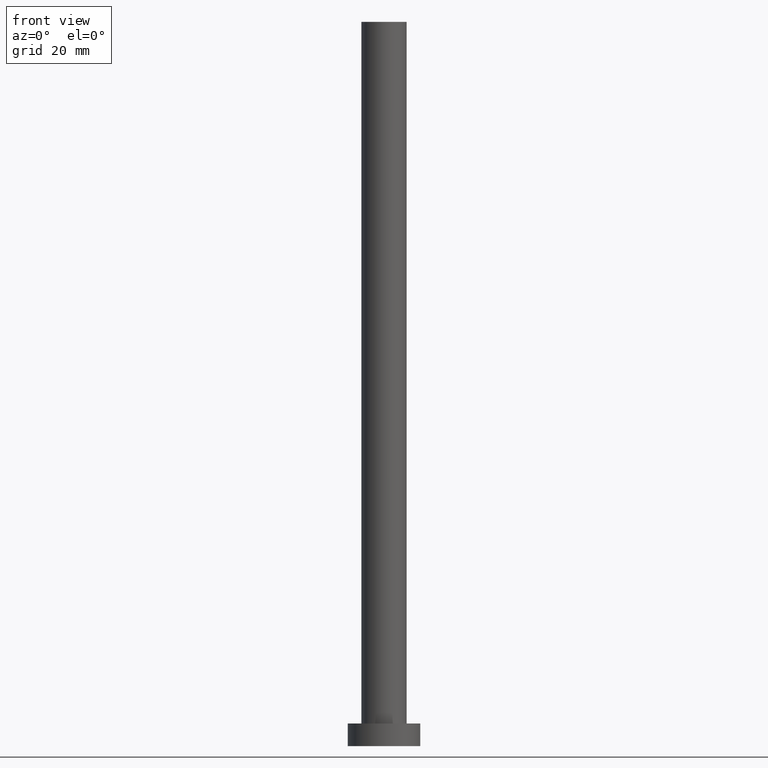
[diagram: clean part render]
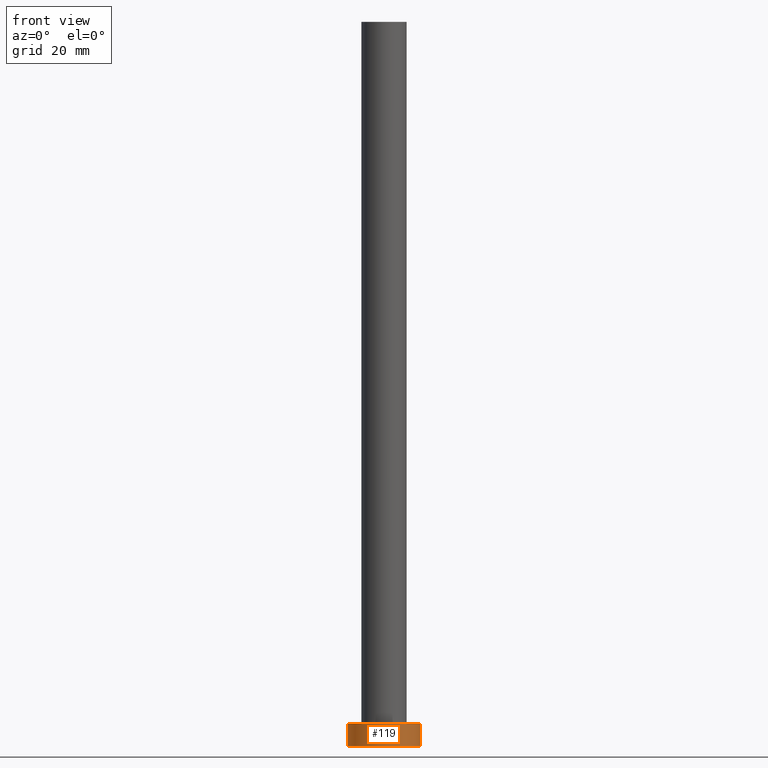
[diagram: same view with one face highlighted and labeled with its STEP entity id]
A machine part, front view. The second image highlights one B-rep face of the part: STEP entity #119.
In plain terms, the highlighted cylindrical surface (edge-blend (fillet) strip) has radius 8 mm, axis along (-0, -0, -1).
Its self-contained STEP definition (entity closure, byte-faithful):
#2 = DIRECTION ( 'NONE',  ( -1.000000000000000000, 0.000000000000000000, 0.000000000000000000 ) ) ;
#3 = DIRECTION ( 'NONE',  ( -0.000000000000000000, -0.000000000000000000, -1.000000000000000000 ) ) ;
#8 = CARTESIAN_POINT ( 'NONE',  ( 8.000000000000000000, 9.797174393178825657E-16, 5.000000000000000000 ) ) ;
#10 = EDGE_CURVE ( 'NONE', #112, #227, #230, .T. ) ;
#12 = EDGE_CURVE ( 'NONE', #90, #112, #19, .T. ) ;
#16 = AXIS2_PLACEMENT_3D ( 'NONE', #57, #129, #234 ) ;
#18 = VECTOR ( 'NONE', #38, 1000.000000000000000 ) ;
#19 = LINE ( 'NONE', #110, #18 ) ;
#38 = DIRECTION ( 'NONE',  ( -0.000000000000000000, -0.000000000000000000, -1.000000000000000000 ) ) ;
#39 = FACE_OUTER_BOUND ( 'NONE', #180, .T. ) ;
#56 = CARTESIAN_POINT ( 'NONE',  ( 0.000000000000000000, 0.000000000000000000, 0.000000000000000000 ) ) ;
#57 = CARTESIAN_POINT ( 'NONE',  ( 0.000000000000000000, 0.000000000000000000, 5.000000000000000000 ) ) ;
#81 = CARTESIAN_POINT ( 'NONE',  ( 8.000000000000000000, 9.797174393178825657E-16, 0.000000000000000000 ) ) ;
#90 = VERTEX_POINT ( 'NONE', #106 ) ;
#106 = CARTESIAN_POINT ( 'NONE',  ( -8.000000000000000000, 0.000000000000000000, 5.000000000000000000 ) ) ;
#107 = DIRECTION ( 'NONE',  ( 1.000000000000000000, 0.000000000000000000, 0.000000000000000000 ) ) ;
#110 = CARTESIAN_POINT ( 'NONE',  ( -8.000000000000000000, 0.000000000000000000, 5.000000000000000000 ) ) ;
#112 = VERTEX_POINT ( 'NONE', #206 ) ;
#119 = ADVANCED_FACE ( 'NONE', ( #39 ), #186, .T. ) ;
#123 = AXIS2_PLACEMENT_3D ( 'NONE', #167, #3, #2 ) ;
#129 = DIRECTION ( 'NONE',  ( 0.000000000000000000, 0.000000000000000000, 1.000000000000000000 ) ) ;
#132 = LINE ( 'NONE', #212, #187 ) ;
#161 = DIRECTION ( 'NONE',  ( 0.000000000000000000, 0.000000000000000000, 1.000000000000000000 ) ) ;
#167 = CARTESIAN_POINT ( 'NONE',  ( 0.000000000000000000, 0.000000000000000000, 5.000000000000000000 ) ) ;
#173 = ORIENTED_EDGE ( 'NONE', *, *, #10, .T. ) ;
#174 = ORIENTED_EDGE ( 'NONE', *, *, #12, .T. ) ;
#175 = ORIENTED_EDGE ( 'NONE', *, *, #224, .F. ) ;
#180 = EDGE_LOOP ( 'NONE', ( #221, #175, #174, #173 ) ) ;
#182 = CIRCLE ( 'NONE', #16, 8.000000000000000000 ) ;
#186 = CYLINDRICAL_SURFACE ( 'NONE', #123, 8.000000000000000000 ) ;
#187 = VECTOR ( 'NONE', #235, 1000.000000000000000 ) ;
#199 = VERTEX_POINT ( 'NONE', #8 ) ;
#205 = AXIS2_PLACEMENT_3D ( 'NONE', #56, #161, #107 ) ;
#206 = CARTESIAN_POINT ( 'NONE',  ( -8.000000000000000000, 0.000000000000000000, 0.000000000000000000 ) ) ;
#212 = CARTESIAN_POINT ( 'NONE',  ( 8.000000000000000000, 9.797174393178825657E-16, 5.000000000000000000 ) ) ;
#221 = ORIENTED_EDGE ( 'NONE', *, *, #253, .F. ) ;
#224 = EDGE_CURVE ( 'NONE', #90, #199, #182, .T. ) ;
#227 = VERTEX_POINT ( 'NONE', #81 ) ;
#230 = CIRCLE ( 'NONE', #205, 8.000000000000000000 ) ;
#234 = DIRECTION ( 'NONE',  ( 1.000000000000000000, 0.000000000000000000, 0.000000000000000000 ) ) ;
#235 = DIRECTION ( 'NONE',  ( -0.000000000000000000, -0.000000000000000000, -1.000000000000000000 ) ) ;
#253 = EDGE_CURVE ( 'NONE', #199, #227, #132, .T. ) ;